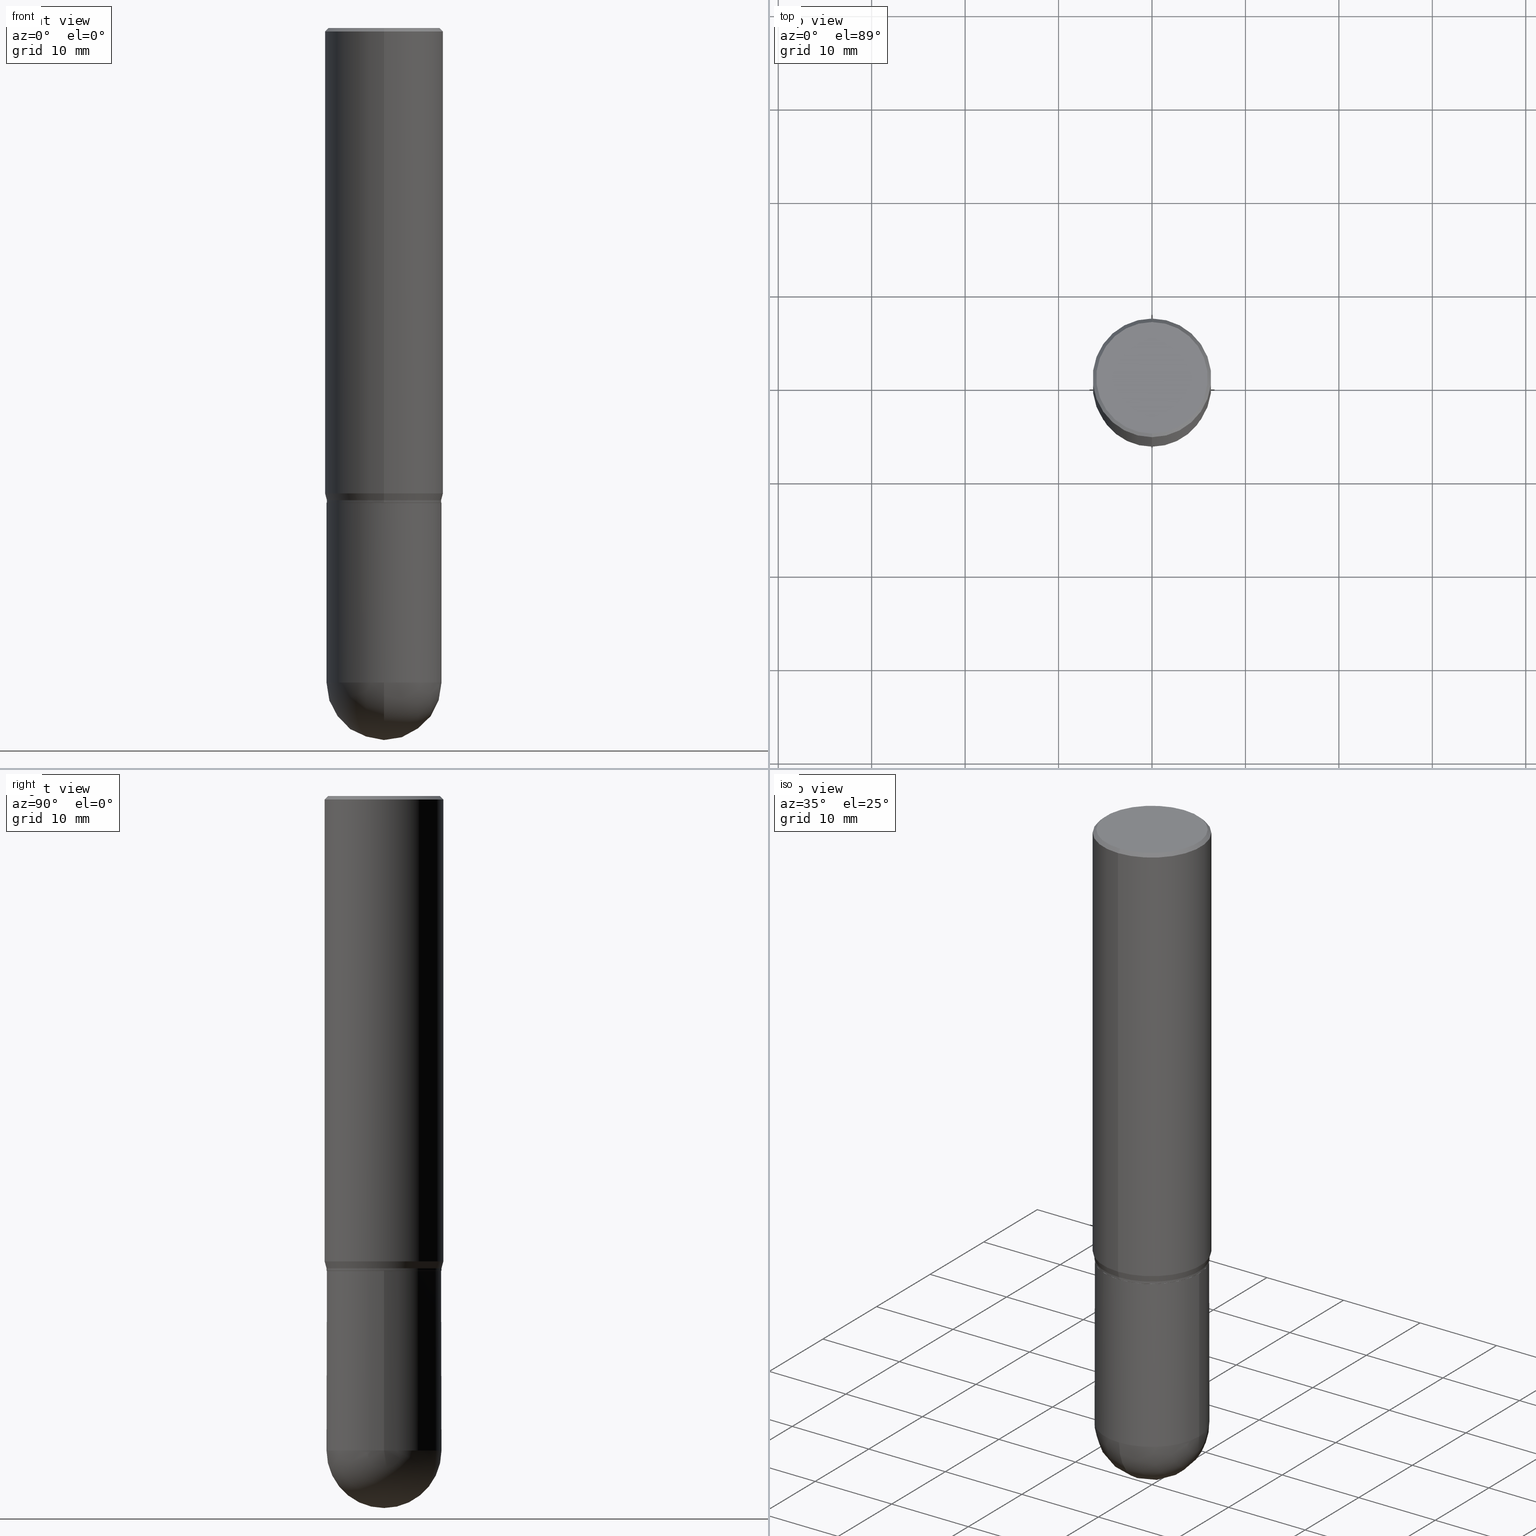
[diagram: canonical four-view strip — front | top / right | iso, engineering-drawing reading convention]
A machine part, canonical four-view strip (front | top / right | iso — engineering-drawing reading convention). The complete STEP part file that produces these views, byte-faithful:
ISO-10303-21;
HEADER;
FILE_DESCRIPTION (( 'STEP AP203' ),
    '1' );
FILE_NAME ('31160.STEP',
    '2024-03-08T15:59:25',
    ( '' ),
    ( '' ),
    'SwSTEP 2.0',
    'SolidWorks 2023',
    '' );
FILE_SCHEMA (( 'CONFIG_CONTROL_DESIGN' ));
ENDSEC;

DATA;
#1 = EDGE_CURVE ( 'NONE', #58, #331, #147, .T. ) ;
#2 = PERSON_AND_ORGANIZATION_ROLE ( 'creator' ) ;
#3 = CIRCLE ( 'NONE', #286, 0.2500000000000000000 ) ;
#4 = LOCAL_TIME ( 10, 59, 25.00000000000000000, #233 ) ;
#5 = CC_DESIGN_DATE_AND_TIME_ASSIGNMENT ( #476, #229, ( #320 ) ) ;
#6 = DATE_AND_TIME ( #270, #101 ) ;
#7 = DIRECTION ( 'NONE',  ( 2.445555638780933781E-29, -3.491356989623759642E-15, -1.000000000000000000 ) ) ;
#8 = MANIFOLD_SOLID_BREP ( 'Body-Move/Copy2[1]', #238 ) ;
#9 = DIRECTION ( 'NONE',  ( -2.445555638780933781E-29, 3.491356989623759642E-15, 1.000000000000000000 ) ) ;
#10 = FACE_OUTER_BOUND ( 'NONE', #345, .T. ) ;
#11 = EDGE_CURVE ( 'NONE', #259, #96, #506, .T. ) ;
#12 = CIRCLE ( 'NONE', #365, 0.2422000000000000264 ) ;
#13 = CARTESIAN_POINT ( 'NONE',  ( 0.2422000000000000264, -1.691273560535613991E-15, 1.181010015097775692E-29 ) ) ;
#14 = CC_DESIGN_SECURITY_CLASSIFICATION ( #320, ( #136 ) ) ;
#15 = FACE_OUTER_BOUND ( 'NONE', #144, .T. ) ;
#16 = DIRECTION ( 'NONE',  ( -6.982962677686265922E-15, -1.000000000000000000, 3.491643216902136408E-15 ) ) ;
#17 = DIRECTION ( 'NONE',  ( -6.982962677686265922E-15, -1.000000000000000000, 3.383791899666718258E-15 ) ) ;
#18 = ORIENTED_EDGE ( 'NONE', *, *, #19, .F. ) ;
#19 = EDGE_CURVE ( 'NONE', #329, #92, #245, .T. ) ;
#20 = LINE ( 'NONE', #169, #200 ) ;
#21 = DIRECTION ( 'NONE',  ( -2.445555638780933781E-29, 3.491356989623759642E-15, 1.000000000000000000 ) ) ;
#22 = AXIS2_PLACEMENT_3D ( 'NONE', #381, #26, #341 ) ;
#23 = CARTESIAN_POINT ( 'NONE',  ( 4.891111277561868122E-29, -6.982713979247520861E-15, -2.000000000000000444 ) ) ;
#24 = LINE ( 'NONE', #217, #267 ) ;
#25 = ORIENTED_EDGE ( 'NONE', *, *, #123, .F. ) ;
#26 = DIRECTION ( 'NONE',  ( -2.445555638780933781E-29, 3.491356989623759642E-15, 1.000000000000000000 ) ) ;
#27 = ADVANCED_FACE ( 'NONE', ( #352 ), #309, .F. ) ;
#28 = ORIENTED_EDGE ( 'NONE', *, *, #98, .T. ) ;
#29 = CONICAL_SURFACE ( 'NONE', #328, 0.2421999999999999431, 0.2617993877991505736 ) ;
#30 = FACE_OUTER_BOUND ( 'NONE', #55, .T. ) ;
#31 = ORIENTED_EDGE ( 'NONE', *, *, #243, .F. ) ;
#32 = DIRECTION ( 'NONE',  ( -1.000000000000000000, 6.982962677686265922E-15, -4.883557194083112340E-29 ) ) ;
#33 = ORIENTED_EDGE ( 'NONE', *, *, #209, .T. ) ;
#34 = DIRECTION ( 'NONE',  ( -2.445555638780933781E-29, 3.491356989623759642E-15, 1.000000000000000000 ) ) ;
#35 = ADVANCED_FACE ( 'NONE', ( #399 ), #29, .T. ) ;
#36 = CARTESIAN_POINT ( 'NONE',  ( 4.890937612370273754E-29, -6.982962677686291954E-15, -2.000000000000000444 ) ) ;
#37 = SHAPE_DEFINITION_REPRESENTATION ( #193, #241 ) ;
#38 = VECTOR ( 'NONE', #450, 39.37007874015748854 ) ;
#39 = ORIENTED_EDGE ( 'NONE', *, *, #413, .F. ) ;
#40 = VECTOR ( 'NONE', #432, 39.37007874015748143 ) ;
#41 = CARTESIAN_POINT ( 'NONE',  ( 6.744113873697370654E-29, -9.628807236261628470E-15, -2.757800000000000473 ) ) ;
#42 = APPROVAL_PERSON_ORGANIZATION ( #344, #456, #237 ) ;
#43 = APPROVAL_DATE_TIME ( #120, #417 ) ;
#44 = DIRECTION ( 'NONE',  ( -6.982962677686265922E-15, -1.000000000000000000, 3.383791899666718258E-15 ) ) ;
#45 = MECHANICAL_CONTEXT ( 'NONE', #196, 'mechanical' ) ;
#46 = CALENDAR_DATE ( 2024, 8, 3 ) ;
#47 = DIRECTION ( 'NONE',  ( -2.445555638780933781E-29, 3.491356989623759642E-15, 1.000000000000000000 ) ) ;
#48 = CLOSED_SHELL ( 'NONE', ( #129, #475, #319, #140, #374, #35, #353, #303, #89, #452, #443, #340 ) ) ;
#49 = AXIS2_PLACEMENT_3D ( 'NONE', #175, #213, #335 ) ;
#50 = CARTESIAN_POINT ( 'NONE',  ( 3.668333458171462749E-31, -5.237035484435728604E-17, -0.01500000000000025445 ) ) ;
#51 = DIRECTION ( 'NONE',  ( -6.982962677686265922E-15, -1.000000000000000000, 3.383791899666718258E-15 ) ) ;
#52 = CC_DESIGN_PERSON_AND_ORGANIZATION_ASSIGNMENT ( #442, #81, ( #362 ) ) ;
#53 = DIRECTION ( 'NONE',  ( -2.445555638780933781E-29, 3.491356989623759642E-15, 1.000000000000000000 ) ) ;
#54 = DIRECTION ( 'NONE',  ( -6.982962677686265922E-15, -1.000000000000000000, 3.278217592397115862E-15 ) ) ;
#55 = EDGE_LOOP ( 'NONE', ( #449, #176, #219, #214 ) ) ;
#56 = EDGE_CURVE ( 'NONE', #154, #78, #346, .T. ) ;
#57 = CARTESIAN_POINT ( 'NONE',  ( 0.000000000000000000, 0.000000000000000000, 0.000000000000000000 ) ) ;
#58 = VERTEX_POINT ( 'NONE', #165 ) ;
#59 = LOCAL_TIME ( 10, 59, 25.00000000000000000, #312 ) ;
#60 = LINE ( 'NONE', #337, #448 ) ;
#61 = EDGE_CURVE ( 'NONE', #96, #259, #295, .T. ) ;
#62 = CARTESIAN_POINT ( 'NONE',  ( 7.326050354793448959E-29, -1.048927448926711285E-14, -3.000000000000000444 ) ) ;
#63 = ORIENTED_EDGE ( 'NONE', *, *, #177, .T. ) ;
#64 = DIRECTION ( 'NONE',  ( 1.000000000000000000, -6.982962677686265922E-15, 0.000000000000000000 ) ) ;
#65 = VERTEX_POINT ( 'NONE', #318 ) ;
#66 = CARTESIAN_POINT ( 'NONE',  ( -1.745740669421565889E-15, -0.2500000000000000555, -0.01499999999999938188 ) ) ;
#67 = DIRECTION ( 'NONE',  ( -6.982962677686265922E-15, -1.000000000000000000, 3.491356989623759247E-15 ) ) ;
#68 = LOCAL_TIME ( 10, 59, 25.00000000000000000, #275 ) ;
#69 = ORIENTED_EDGE ( 'NONE', *, *, #384, .F. ) ;
#70 = FACE_OUTER_BOUND ( 'NONE', #150, .T. ) ;
#71 = EDGE_CURVE ( 'NONE', #259, #508, #82, .T. ) ;
#72 = DATE_TIME_ROLE ( 'creation_date' ) ;
#73 = ORIENTED_EDGE ( 'NONE', *, *, #435, .F. ) ;
#74 = CARTESIAN_POINT ( 'NONE',  ( 4.889888499742477843E-29, -6.980968300752708028E-15, -1.999500000000000277 ) ) ;
#75 = PERSON_AND_ORGANIZATION ( #158, #212 ) ;
#76 = CARTESIAN_POINT ( 'NONE',  ( -0.2422000000000000264, 1.720934506010962838E-15, -1.191366078859738205E-29 ) ) ;
#77 = APPLICATION_PROTOCOL_DEFINITION ( 'international standard', 'config_control_design', 1994, #215 ) ;
#78 = VERTEX_POINT ( 'NONE', #355 ) ;
#79 = CIRCLE ( 'NONE', #22, 0.2500000000000000000 ) ;
#80 = DIRECTION ( 'NONE',  ( -2.445468806185136597E-29, 3.491481338843145583E-15, 1.000000000000000000 ) ) ;
#81 = PERSON_AND_ORGANIZATION_ROLE ( 'design_owner' ) ;
#82 = LINE ( 'NONE', #130, #132 ) ;
#83 = DIRECTION ( 'NONE',  ( -2.445555638780933781E-29, 3.491356989623759642E-15, 1.000000000000000000 ) ) ;
#84 = DIRECTION ( 'NONE',  ( 6.982962677686265922E-15, 1.000000000000000000, -3.491643216902136408E-15 ) ) ;
#85 = CARTESIAN_POINT ( 'NONE',  ( 3.668333458171462749E-31, -5.237035484435728604E-17, -0.01500000000000025445 ) ) ;
#86 = VECTOR ( 'NONE', #493, 39.37007874015748143 ) ;
#87 = APPROVAL ( #510, 'UNSPECIFIED' ) ;
#88 = CARTESIAN_POINT ( 'NONE',  ( 1.640996229256272519E-15, 0.2349999999999999867, -9.479993275612526282E-16 ) ) ;
#89 = ADVANCED_FACE ( 'NONE', ( #10 ), #445, .F. ) ;
#90 = DIRECTION ( 'NONE',  ( 1.000000000000000000, -6.982962677686266711E-15, 4.876176775795935232E-29 ) ) ;
#91 = AXIS2_PLACEMENT_3D ( 'NONE', #310, #47, #473 ) ;
#92 = VERTEX_POINT ( 'NONE', #481 ) ;
#93 = CARTESIAN_POINT ( 'NONE',  ( 6.723401746173445627E-29, -9.658468181736976725E-15, -2.757800000000000473 ) ) ;
#94 = EDGE_LOOP ( 'NONE', ( #234, #392, #460, #387 ) ) ;
#95 = CARTESIAN_POINT ( 'NONE',  ( 4.891111277561868122E-29, -6.982713979247520861E-15, -2.000000000000000444 ) ) ;
#96 = VERTEX_POINT ( 'NONE', #162 ) ;
#97 = ORIENTED_EDGE ( 'NONE', *, *, #205, .F. ) ;
#98 = EDGE_CURVE ( 'NONE', #376, #170, #492, .T. ) ;
#99 = AXIS2_PLACEMENT_3D ( 'NONE', #338, #195, #261 ) ;
#100 = CIRCLE ( 'NONE', #336, 0.2421999999999999431 ) ;
#101 = LOCAL_TIME ( 10, 59, 25.00000000000000000, #194 ) ;
#102 = DIRECTION ( 'NONE',  ( -2.445555638780933781E-29, 3.491356989623759247E-15, 1.000000000000000000 ) ) ;
#103 = ORIENTED_EDGE ( 'NONE', *, *, #404, .F. ) ;
#104 = ORIENTED_EDGE ( 'NONE', *, *, #488, .F. ) ;
#105 = UNCERTAINTY_MEASURE_WITH_UNIT (LENGTH_MEASURE( 1.000000000000000082E-05 ), #260, 'distance_accuracy_value', 'NONE');
#106 = DIRECTION ( 'NONE',  ( -2.445468806185136597E-29, 3.491481338843145583E-15, 1.000000000000000000 ) ) ;
#107 = ORIENTED_EDGE ( 'NONE', *, *, #397, .F. ) ;
#108 = DIRECTION ( 'NONE',  ( 6.982962677686265922E-15, 1.000000000000000000, -4.511722532888956363E-15 ) ) ;
#109 = EDGE_LOOP ( 'NONE', ( #486, #208, #424, #25, #333 ) ) ;
#110 = EDGE_CURVE ( 'NONE', #78, #154, #167, .T. ) ;
#111 = LINE ( 'NONE', #146, #330 ) ;
#112 = ORIENTED_EDGE ( 'NONE', *, *, #205, .T. ) ;
#113 = LINE ( 'NONE', #227, #256 ) ;
#114 = DIRECTION ( 'NONE',  ( -7.105427357601000281E-15, -1.000000000000000000, 0.000000000000000000 ) ) ;
#115 = AXIS2_PLACEMENT_3D ( 'NONE', #23, #378, #143 ) ;
#116 = CC_DESIGN_APPROVAL ( #87, ( #320 ) ) ;
#117 = DIRECTION ( 'NONE',  ( 1.000000000000000000, -6.982962677686265922E-15, 4.883557194083112340E-29 ) ) ;
#118 = DATE_AND_TIME ( #46, #68 ) ;
#119 = ORIENTED_EDGE ( 'NONE', *, *, #56, .F. ) ;
#120 = DATE_AND_TIME ( #199, #4 ) ;
#121 = EDGE_LOOP ( 'NONE', ( #308, #224, #370, #470 ) ) ;
#122 = DIRECTION ( 'NONE',  ( -6.982962677686265922E-15, -1.000000000000000000, 3.383791899666718258E-15 ) ) ;
#123 = EDGE_CURVE ( 'NONE', #329, #137, #485, .T. ) ;
#124 = SECURITY_CLASSIFICATION_LEVEL ( 'unclassified' ) ;
#125 = CIRCLE ( 'NONE', #439, 0.2500000000000000000 ) ;
#126 = CARTESIAN_POINT ( 'NONE',  ( 0.000000000000000000, 0.000000000000000000, 0.000000000000000000 ) ) ;
#127 = PERSON_AND_ORGANIZATION ( #158, #212 ) ;
#128 = PERSON_AND_ORGANIZATION ( #158, #212 ) ;
#129 = ADVANCED_FACE ( 'NONE', ( #324 ), #284, .T. ) ;
#130 = CARTESIAN_POINT ( 'NONE',  ( 1.720934506011010761E-15, 0.2421999999999930042, -1.990000000000001101 ) ) ;
#131 = PRODUCT_DEFINITION ( 'UNKNOWN', '', #136, #419 ) ;
#132 = VECTOR ( 'NONE', #361, 39.37007874015748143 ) ;
#133 = CARTESIAN_POINT ( 'NONE',  ( 0.000000000000000000, 0.000000000000000000, 0.000000000000000000 ) ) ;
#134 = AXIS2_PLACEMENT_3D ( 'NONE', #57, #423, #171 ) ;
#135 = FACE_OUTER_BOUND ( 'NONE', #109, .T. ) ;
#136 = PRODUCT_DEFINITION_FORMATION_WITH_SPECIFIED_SOURCE ( 'ANY', '', #362, .NOT_KNOWN. ) ;
#137 = VERTEX_POINT ( 'NONE', #151 ) ;
#138 = ORIENTED_EDGE ( 'NONE', *, *, #189, .F. ) ;
#139 = LINE ( 'NONE', #304, #86 ) ;
#140 = ADVANCED_FACE ( 'NONE', ( #70 ), #468, .T. ) ;
#141 = EDGE_LOOP ( 'NONE', ( #31, #495, #107, #73 ) ) ;
#142 = AXIS2_PLACEMENT_3D ( 'NONE', #281, #402, #51 ) ;
#143 = DIRECTION ( 'NONE',  ( -6.982962677686265922E-15, -1.000000000000000000, 3.390791882909718260E-15 ) ) ;
#144 = EDGE_LOOP ( 'NONE', ( #287, #294, #465, #103 ) ) ;
#145 = ADVANCED_FACE ( 'NONE', ( #135 ), #221, .T. ) ;
#146 = CARTESIAN_POINT ( 'NONE',  ( -1.691273560535613202E-15, -0.2421999999999999431, 8.456066628868743070E-16 ) ) ;
#147 = LINE ( 'NONE', #76, #211 ) ;
#148 = DIRECTION ( 'NONE',  ( 1.000000000000000000, -6.982962677686265922E-15, 0.000000000000000000 ) ) ;
#149 =( NAMED_UNIT ( * ) PLANE_ANGLE_UNIT ( ) SI_UNIT ( $, .RADIAN. ) );
#150 = EDGE_LOOP ( 'NONE', ( #426, #298, #307, #505 ) ) ;
#151 = CARTESIAN_POINT ( 'NONE',  ( 0.2422000000000000264, -8.674236238221906143E-15, -2.000000000000000444 ) ) ;
#152 = CONICAL_SURFACE ( 'NONE', #179, 0.2421999999999999431, 0.2617993877991505736 ) ;
#153 = VERTEX_POINT ( 'NONE', #446 ) ;
#154 = VERTEX_POINT ( 'NONE', #247 ) ;
#155 = ADVANCED_FACE ( 'NONE', ( #343 ), #429, .T. ) ;
#156 = APPROVAL_DATE_TIME ( #6, #456 ) ;
#157 = ORIENTED_EDGE ( 'NONE', *, *, #359, .F. ) ;
#158 = PERSON ( 'UNSPECIFIED', 'UNSPECIFIED', 'UNSPECIFIED', ('UNSPECIFIED'), ('UNSPECIFIED'), ('UNSPECIFIED') ) ;
#159 = DIRECTION ( 'NONE',  ( 2.445555638780933781E-29, -3.491356989623759642E-15, -1.000000000000000000 ) ) ;
#160 = PERSON_AND_ORGANIZATION ( #158, #212 ) ;
#161 = CONICAL_SURFACE ( 'NONE', #115, 0.2417000000000000259, 0.7853981633974824739 ) ;
#162 = CARTESIAN_POINT ( 'NONE',  ( -1.691273560535564490E-15, -0.2422000000000068820, -1.989999999999999547 ) ) ;
#163 = ADVANCED_FACE ( 'NONE', ( #496 ), #207, .T. ) ;
#164 = PERSON_AND_ORGANIZATION_ROLE ( 'design_supplier' ) ;
#165 = CARTESIAN_POINT ( 'NONE',  ( -0.2422000000000000264, -6.584950450963000136E-15, -2.757800000000000473 ) ) ;
#166 = CYLINDRICAL_SURFACE ( 'NONE', #395, 0.2421999999999999431 ) ;
#167 = CIRCLE ( 'NONE', #188, 0.2349999999999999867 ) ;
#168 = DIRECTION ( 'NONE',  ( -2.445468806185136877E-29, 3.491481338843145188E-15, 1.000000000000000000 ) ) ;
#169 = CARTESIAN_POINT ( 'NONE',  ( -1.715124499442882299E-15, -0.2500000000000000555, -0.01499999999999938188 ) ) ;
#170 = VERTEX_POINT ( 'NONE', #66 ) ;
#171 = DIRECTION ( 'NONE',  ( 1.000000000000000000, -6.982962677686266711E-15, 4.876176775795935232E-29 ) ) ;
#172 = MANIFOLD_SOLID_BREP ( 'Body-Move/Copy2[2]', #48 ) ;
#173 = CARTESIAN_POINT ( 'NONE',  ( -1.691273560535564490E-15, -0.2422000000000069375, -1.999499999999999611 ) ) ;
#174 = DIRECTION ( 'NONE',  ( -6.982962677686265922E-15, -1.000000000000000000, 3.390791882909718260E-15 ) ) ;
#175 = CARTESIAN_POINT ( 'NONE',  ( 4.891111277561868122E-29, -6.982713979247520861E-15, -2.000000000000000444 ) ) ;
#176 = ORIENTED_EDGE ( 'NONE', *, *, #488, .T. ) ;
#177 = EDGE_CURVE ( 'NONE', #65, #170, #113, .T. ) ;
#178 = AXIS2_PLACEMENT_3D ( 'NONE', #332, #409, #90 ) ;
#179 = AXIS2_PLACEMENT_3D ( 'NONE', #325, #368, #17 ) ;
#180 = FACE_OUTER_BOUND ( 'NONE', #453, .T. ) ;
#181 = ORIENTED_EDGE ( 'NONE', *, *, #283, .T. ) ;
#182 = DIRECTION ( 'NONE',  ( -2.445555638780933781E-29, 3.491356989623759247E-15, 1.000000000000000000 ) ) ;
#183 = CC_DESIGN_PERSON_AND_ORGANIZATION_ASSIGNMENT ( #75, #504, ( #320 ) ) ;
#184 = ORIENTED_EDGE ( 'NONE', *, *, #198, .T. ) ;
#185 = CARTESIAN_POINT ( 'NONE',  ( -1.720934506010895390E-15, -0.2422000000000096576, -2.757799999999999141 ) ) ;
#186 = APPROVAL_STATUS ( 'not_yet_approved' ) ;
#187 = CARTESIAN_POINT ( 'NONE',  ( 6.723401746173445627E-29, -9.658468181736976725E-15, -2.757800000000000473 ) ) ;
#188 = AXIS2_PLACEMENT_3D ( 'NONE', #363, #317, #480 ) ;
#189 = EDGE_CURVE ( 'NONE', #78, #376, #250, .T. ) ;
#190 = CIRCLE ( 'NONE', #239, 0.2417000000000000259 ) ;
#191 = ORIENTED_EDGE ( 'NONE', *, *, #359, .T. ) ;
#192 = DIRECTION ( 'NONE',  ( 1.000000000000000000, -6.982962677686265922E-15, 0.000000000000000000 ) ) ;
#193 = PRODUCT_DEFINITION_SHAPE ( 'NONE', 'NONE',  #131 ) ;
#194 = COORDINATED_UNIVERSAL_TIME_OFFSET ( 5, 0, .BEHIND. ) ;
#195 = DIRECTION ( 'NONE',  ( -2.445468806185136597E-29, 3.491481338843145583E-15, 1.000000000000000000 ) ) ;
#196 = APPLICATION_CONTEXT ( 'configuration controlled 3d designs of mechanical parts and assemblies' ) ;
#197 = APPROVAL_ROLE ( '' ) ;
#198 = EDGE_CURVE ( 'NONE', #170, #376, #3, .T. ) ;
#199 = CALENDAR_DATE ( 2024, 8, 3 ) ;
#200 = VECTOR ( 'NONE', #499, 39.37007874015748143 ) ;
#201 = AXIS2_PLACEMENT_3D ( 'NONE', #210, #32, #371 ) ;
#202 = CARTESIAN_POINT ( 'NONE',  ( -0.2422000000000000264, -6.584950450962997769E-15, -2.000000000000000444 ) ) ;
#203 = DIRECTION ( 'NONE',  ( 2.438088387897960049E-29, -3.491481338843145188E-15, -1.000000000000000000 ) ) ;
#204 = DIRECTION ( 'NONE',  ( 6.982962677686265922E-15, 1.000000000000000000, -3.491356989623759247E-15 ) ) ;
#205 = EDGE_CURVE ( 'NONE', #154, #170, #20, .T. ) ;
#206 = CARTESIAN_POINT ( 'NONE',  ( 1.720934506011010761E-15, 0.2421999999999929487, -1.999500000000001165 ) ) ;
#207 = SPHERICAL_SURFACE ( 'NONE', #482, 0.2422000000000000264 ) ;
#208 = ORIENTED_EDGE ( 'NONE', *, *, #1, .T. ) ;
#209 = EDGE_CURVE ( 'NONE', #331, #137, #266, .T. ) ;
#210 = CARTESIAN_POINT ( 'NONE',  ( 6.723401746173445627E-29, -9.658468181736976725E-15, -2.757800000000000473 ) ) ;
#211 = VECTOR ( 'NONE', #273, 39.37007874015748143 ) ;
#212 = ORGANIZATION ( 'UNSPECIFIED', 'UNSPECIFIED', '' ) ;
#213 = DIRECTION ( 'NONE',  ( -2.445555638780933781E-29, 3.491356989623759642E-15, 1.000000000000000000 ) ) ;
#214 = ORIENTED_EDGE ( 'NONE', *, *, #216, .F. ) ;
#215 = APPLICATION_CONTEXT ( 'configuration controlled 3d designs of mechanical parts and assemblies' ) ;
#216 = EDGE_CURVE ( 'NONE', #153, #385, #487, .T. ) ;
#217 = CARTESIAN_POINT ( 'NONE',  ( -1.691273560535564490E-15, -0.2422000000000068820, -1.989999999999999547 ) ) ;
#218 = DIRECTION ( 'NONE',  ( 1.000000000000000000, -6.982962677686265922E-15, 0.000000000000000000 ) ) ;
#219 = ORIENTED_EDGE ( 'NONE', *, *, #283, .F. ) ;
#220 = CC_DESIGN_PERSON_AND_ORGANIZATION_ASSIGNMENT ( #128, #2, ( #136 ) ) ;
#221 = CYLINDRICAL_SURFACE ( 'NONE', #178, 0.2422000000000000264 ) ;
#222 = EDGE_LOOP ( 'NONE', ( #377, #253, #191, #291, #301 ) ) ;
#223 = CARTESIAN_POINT ( 'NONE',  ( 4.891111277561868122E-29, -6.982713979247520861E-15, -2.000000000000000444 ) ) ;
#224 = ORIENTED_EDGE ( 'NONE', *, *, #11, .T. ) ;
#225 = CARTESIAN_POINT ( 'NONE',  ( 1.745740669421566875E-15, 0.2499999999999999167, -0.01500000000000112702 ) ) ;
#226 = VERTEX_POINT ( 'NONE', #185 ) ;
#227 = CARTESIAN_POINT ( 'NONE',  ( -1.745740669421566480E-15, -0.2500000000000000000, 8.728392474059399104E-16 ) ) ;
#228 = EDGE_CURVE ( 'NONE', #137, #331, #394, .T. ) ;
#229 = DATE_TIME_ROLE ( 'classification_date' ) ;
#230 = ORIENTED_EDGE ( 'NONE', *, *, #401, .T. ) ;
#231 = AXIS2_PLACEMENT_3D ( 'NONE', #498, #203, #242 ) ;
#232 = AXIS2_PLACEMENT_3D ( 'NONE', #85, #7, #84 ) ;
#233 = COORDINATED_UNIVERSAL_TIME_OFFSET ( 5, 0, .BEHIND. ) ;
#234 = ORIENTED_EDGE ( 'NONE', *, *, #401, .F. ) ;
#235 = DIRECTION ( 'NONE',  ( -2.445555638780933781E-29, 3.491356989623759642E-15, 1.000000000000000000 ) ) ;
#236 = CARTESIAN_POINT ( 'NONE',  ( 0.2422000000000000264, -9.997158517509574401E-15, -2.757800000000000473 ) ) ;
#237 = APPROVAL_ROLE ( '' ) ;
#238 = CLOSED_SHELL ( 'NONE', ( #145, #248, #27, #163, #155 ) ) ;
#239 = AXIS2_PLACEMENT_3D ( 'NONE', #223, #497, #174 ) ;
#240 = FACE_OUTER_BOUND ( 'NONE', #511, .T. ) ;
#241 = ADVANCED_BREP_SHAPE_REPRESENTATION ( '31160', ( #8, #172, #282 ), #494 ) ;
#242 = DIRECTION ( 'NONE',  ( -1.000000000000000000, 6.982962677686265922E-15, -4.876176775795935793E-29 ) ) ;
#243 = EDGE_CURVE ( 'NONE', #379, #92, #12, .T. ) ;
#244 = CC_DESIGN_PERSON_AND_ORGANIZATION_ASSIGNMENT ( #436, #272, ( #131 ) ) ;
#245 = CIRCLE ( 'NONE', #99, 0.2422000000000000264 ) ;
#246 = CIRCLE ( 'NONE', #483, 0.2422000000000000264 ) ;
#247 = CARTESIAN_POINT ( 'NONE',  ( -1.663670764459595899E-15, -0.2349999999999999867, 5.654080225622448847E-16 ) ) ;
#248 = ADVANCED_FACE ( 'NONE', ( #383 ), #302, .T. ) ;
#249 = EDGE_LOOP ( 'NONE', ( #255, #380, #18, #157 ) ) ;
#250 = LINE ( 'NONE', #225, #40 ) ;
#251 = ORIENTED_EDGE ( 'NONE', *, *, #326, .F. ) ;
#252 = CARTESIAN_POINT ( 'NONE',  ( 1.776356839400298585E-15, 0.2499999999999999167, -0.01500000000000112702 ) ) ;
#253 = ORIENTED_EDGE ( 'NONE', *, *, #397, .T. ) ;
#254 = AXIS2_PLACEMENT_3D ( 'NONE', #388, #262, #148 ) ;
#255 = ORIENTED_EDGE ( 'NONE', *, *, #420, .F. ) ;
#256 = VECTOR ( 'NONE', #182, 39.37007874015748143 ) ;
#257 = AXIS2_PLACEMENT_3D ( 'NONE', #95, #334, #67 ) ;
#258 = CARTESIAN_POINT ( 'NONE',  ( 1.720934506010962049E-15, 0.2421999999999999431, -8.456066628868743070E-16 ) ) ;
#259 = VERTEX_POINT ( 'NONE', #466 ) ;
#260 =( CONVERSION_BASED_UNIT ( 'INCH', #293 ) LENGTH_UNIT ( ) NAMED_UNIT ( #472 ) );
#261 = DIRECTION ( 'NONE',  ( 1.000000000000000000, -6.982962677686265922E-15, 0.000000000000000000 ) ) ;
#262 = DIRECTION ( 'NONE',  ( -2.445468806185136597E-29, 3.491481338843145583E-15, 1.000000000000000000 ) ) ;
#263 = ORIENTED_EDGE ( 'NONE', *, *, #189, .T. ) ;
#264 = ORIENTED_EDGE ( 'NONE', *, *, #367, .T. ) ;
#265 = CARTESIAN_POINT ( 'NONE',  ( 3.668333458171462749E-31, -5.237035484435728604E-17, -0.01500000000000025445 ) ) ;
#266 = CIRCLE ( 'NONE', #254, 0.2422000000000000264 ) ;
#267 = VECTOR ( 'NONE', #300, 39.37007874015748854 ) ;
#268 =( NAMED_UNIT ( * ) SI_UNIT ( $, .STERADIAN. ) SOLID_ANGLE_UNIT ( ) );
#269 = CARTESIAN_POINT ( 'NONE',  ( 1.719158149171610903E-15, 0.2416999999999930593, -2.000000000000000888 ) ) ;
#270 = CALENDAR_DATE ( 2024, 8, 3 ) ;
#271 = VERTEX_POINT ( 'NONE', #269 ) ;
#272 = PERSON_AND_ORGANIZATION_ROLE ( 'creator' ) ;
#273 = DIRECTION ( 'NONE',  ( -2.445468806185136877E-29, 3.491481338843145188E-15, 1.000000000000000000 ) ) ;
#274 = APPROVAL_PERSON_ORGANIZATION ( #160, #417, #197 ) ;
#275 = COORDINATED_UNIVERSAL_TIME_OFFSET ( 5, 0, .BEHIND. ) ;
#276 = CYLINDRICAL_SURFACE ( 'NONE', #416, 0.2500000000000000000 ) ;
#277 = COORDINATED_UNIVERSAL_TIME_OFFSET ( 5, 0, .BEHIND. ) ;
#278 = CARTESIAN_POINT ( 'NONE',  ( 4.866655721174059188E-29, -6.947800409351283919E-15, -1.990000000000000435 ) ) ;
#279 = APPROVAL_DATE_TIME ( #478, #87 ) ;
#280 = AXIS2_PLACEMENT_3D ( 'NONE', #437, #398, #44 ) ;
#281 = CARTESIAN_POINT ( 'NONE',  ( 4.866655721174059188E-29, -6.947800409351283919E-15, -1.990000000000000435 ) ) ;
#282 = AXIS2_PLACEMENT_3D ( 'NONE', #357, #471, #441 ) ;
#283 = EDGE_CURVE ( 'NONE', #385, #369, #100, .T. ) ;
#284 = CYLINDRICAL_SURFACE ( 'NONE', #428, 0.2421999999999999431 ) ;
#285 = DIRECTION ( 'NONE',  ( -6.982962677686265922E-15, -1.000000000000000000, 3.491356989623759642E-15 ) ) ;
#286 = AXIS2_PLACEMENT_3D ( 'NONE', #265, #327, #339 ) ;
#287 = ORIENTED_EDGE ( 'NONE', *, *, #61, .T. ) ;
#288 = CC_DESIGN_APPROVAL ( #417, ( #131 ) ) ;
#289 = ORIENTED_EDGE ( 'NONE', *, *, #61, .F. ) ;
#290 = CARTESIAN_POINT ( 'NONE',  ( -1.687782079196721483E-15, -0.2417000000000069926, -1.999999999999999334 ) ) ;
#291 = ORIENTED_EDGE ( 'NONE', *, *, #123, .T. ) ;
#292 = DIRECTION ( 'NONE',  ( -2.445555638780933781E-29, 3.491356989623759247E-15, 1.000000000000000000 ) ) ;
#293 = LENGTH_MEASURE_WITH_UNIT ( LENGTH_MEASURE( 0.02539999999999999897 ), #454 );
#294 = ORIENTED_EDGE ( 'NONE', *, *, #71, .T. ) ;
#295 = CIRCLE ( 'NONE', #142, 0.2421999999999999431 ) ;
#296 = CIRCLE ( 'NONE', #474, 0.2422000000000000264 ) ;
#297 = CARTESIAN_POINT ( 'NONE',  ( 1.776356839400298191E-15, 0.2499999999999931721, -1.960890003700963780 ) ) ;
#298 = ORIENTED_EDGE ( 'NONE', *, *, #484, .T. ) ;
#299 = DIRECTION ( 'NONE',  ( -1.000000000000000000, 6.982962677686265922E-15, -4.883557194083112340E-29 ) ) ;
#300 = DIRECTION ( 'NONE',  ( -1.807323732225332111E-15, -0.2588190451025184635, 0.9659258262890689783 ) ) ;
#301 = ORIENTED_EDGE ( 'NONE', *, *, #209, .F. ) ;
#302 = SPHERICAL_SURFACE ( 'NONE', #201, 0.2422000000000000264 ) ;
#303 = ADVANCED_FACE ( 'NONE', ( #512 ), #386, .T. ) ;
#304 = CARTESIAN_POINT ( 'NONE',  ( 1.776356839400250267E-15, 0.2500000000000000000, -8.728392474059399104E-16 ) ) ;
#305 = DIRECTION ( 'NONE',  ( 1.000000000000000000, -6.982962677686265922E-15, 0.000000000000000000 ) ) ;
#306 = CONICAL_SURFACE ( 'NONE', #49, 0.2417000000000000259, 0.7853981633974824739 ) ;
#307 = ORIENTED_EDGE ( 'NONE', *, *, #198, .F. ) ;
#308 = ORIENTED_EDGE ( 'NONE', *, *, #71, .F. ) ;
#309 = PLANE ( 'NONE',  #231 ) ;
#310 = CARTESIAN_POINT ( 'NONE',  ( 4.891111277561868122E-29, -6.982713979247520861E-15, -2.000000000000000444 ) ) ;
#311 = AXIS2_PLACEMENT_3D ( 'NONE', #400, #159, #509 ) ;
#312 = COORDINATED_UNIVERSAL_TIME_OFFSET ( 5, 0, .BEHIND. ) ;
#313 = FACE_OUTER_BOUND ( 'NONE', #489, .T. ) ;
#314 = CALENDAR_DATE ( 2024, 8, 3 ) ;
#315 = DIRECTION ( 'NONE',  ( -6.982962677686265922E-15, -1.000000000000000000, 3.383791899666718258E-15 ) ) ;
#316 = DIRECTION ( 'NONE',  ( -2.445555638780933781E-29, 3.491356989623759642E-15, 1.000000000000000000 ) ) ;
#317 = DIRECTION ( 'NONE',  ( -2.445555638780933781E-29, 3.491356989623759642E-15, 1.000000000000000000 ) ) ;
#318 = CARTESIAN_POINT ( 'NONE',  ( -1.745740669421518360E-15, -0.2500000000000068279, -1.960890003700962225 ) ) ;
#319 = ADVANCED_FACE ( 'NONE', ( #313 ), #469, .T. ) ;
#320 = SECURITY_CLASSIFICATION ( '', '', #124 ) ;
#321 = DIRECTION ( 'NONE',  ( -6.982962677686266711E-15, -1.000000000000000000, 3.491356989623759642E-15 ) ) ;
#322 = CC_DESIGN_APPROVAL ( #456, ( #136 ) ) ;
#323 = PRODUCT_RELATED_PRODUCT_CATEGORY ( 'detail', '', ( #362 ) ) ;
#324 = FACE_OUTER_BOUND ( 'NONE', #410, .T. ) ;
#325 = CARTESIAN_POINT ( 'NONE',  ( 4.866655721174059188E-29, -6.947800409351283919E-15, -1.990000000000000435 ) ) ;
#326 = EDGE_CURVE ( 'NONE', #153, #271, #347, .T. ) ;
#327 = DIRECTION ( 'NONE',  ( -2.445555638780933781E-29, 3.491356989623759642E-15, 1.000000000000000000 ) ) ;
#328 = AXIS2_PLACEMENT_3D ( 'NONE', #278, #9, #315 ) ;
#329 = VERTEX_POINT ( 'NONE', #236 ) ;
#330 = VECTOR ( 'NONE', #292, 39.37007874015748143 ) ;
#331 = VERTEX_POINT ( 'NONE', #202 ) ;
#332 = CARTESIAN_POINT ( 'NONE',  ( 0.000000000000000000, 0.000000000000000000, 0.000000000000000000 ) ) ;
#333 = ORIENTED_EDGE ( 'NONE', *, *, #19, .T. ) ;
#334 = DIRECTION ( 'NONE',  ( -2.445555638780933781E-29, 3.491356989623759247E-15, 1.000000000000000000 ) ) ;
#335 = DIRECTION ( 'NONE',  ( -6.982962677686265922E-15, -1.000000000000000000, 3.390791882909718260E-15 ) ) ;
#336 = AXIS2_PLACEMENT_3D ( 'NONE', #74, #390, #122 ) ;
#337 = CARTESIAN_POINT ( 'NONE',  ( 1.717381792332211046E-15, 0.2416999999999930593, -2.000000000000000888 ) ) ;
#338 = CARTESIAN_POINT ( 'NONE',  ( 6.744113873697370654E-29, -9.628807236261628470E-15, -2.757800000000000473 ) ) ;
#339 = DIRECTION ( 'NONE',  ( -6.982962677686265922E-15, -1.000000000000000000, 3.491643216902136408E-15 ) ) ;
#340 = ADVANCED_FACE ( 'NONE', ( #358 ), #166, .T. ) ;
#341 = DIRECTION ( 'NONE',  ( -6.982962677686265922E-15, -1.000000000000000000, 3.278217592397115862E-15 ) ) ;
#342 = ORIENTED_EDGE ( 'NONE', *, *, #503, .F. ) ;
#343 = FACE_OUTER_BOUND ( 'NONE', #222, .T. ) ;
#344 = PERSON_AND_ORGANIZATION ( #158, #212 ) ;
#345 = EDGE_LOOP ( 'NONE', ( #412, #501 ) ) ;
#346 = CIRCLE ( 'NONE', #407, 0.2349999999999999867 ) ;
#347 = CIRCLE ( 'NONE', #91, 0.2417000000000000259 ) ;
#348 = CALENDAR_DATE ( 2024, 8, 3 ) ;
#349 = EDGE_LOOP ( 'NONE', ( #422, #33 ) ) ;
#350 = CARTESIAN_POINT ( 'NONE',  ( 4.795465605580055737E-29, -6.846167020304717561E-15, -1.960890003700963113 ) ) ;
#351 = PERSON_AND_ORGANIZATION ( #158, #212 ) ;
#352 = FACE_OUTER_BOUND ( 'NONE', #349, .T. ) ;
#353 = ADVANCED_FACE ( 'NONE', ( #240 ), #276, .T. ) ;
#354 = APPROVAL_STATUS ( 'not_yet_approved' ) ;
#355 = CARTESIAN_POINT ( 'NONE',  ( 1.693368449338919598E-15, 0.2349999999999999867, -1.075529762560922139E-15 ) ) ;
#356 = AXIS2_PLACEMENT_3D ( 'NONE', #375, #372, #431 ) ;
#357 = CARTESIAN_POINT ( 'NONE',  ( 0.000000000000000000, 0.000000000000000000, 0.000000000000000000 ) ) ;
#358 = FACE_OUTER_BOUND ( 'NONE', #94, .T. ) ;
#359 = EDGE_CURVE ( 'NONE', #226, #329, #507, .T. ) ;
#360 = CC_DESIGN_PERSON_AND_ORGANIZATION_ASSIGNMENT ( #127, #164, ( #136 ) ) ;
#361 = DIRECTION ( 'NONE',  ( 1.839019923739602287E-15, 0.2588190451025252359, 0.9659258262890670910 ) ) ;
#362 = PRODUCT ( '31160', '31160', '', ( #45 ) ) ;
#363 = CARTESIAN_POINT ( 'NONE',  ( 6.237655488592530881E-45, -8.905085512517078143E-31, -2.550608699993385778E-16 ) ) ;
#364 = AXIS2_PLACEMENT_3D ( 'NONE', #133, #21, #285 ) ;
#365 = AXIS2_PLACEMENT_3D ( 'NONE', #93, #117, #411 ) ;
#366 = DIRECTION ( 'NONE',  ( -2.445555638780933781E-29, 3.491356989623759642E-15, 1.000000000000000000 ) ) ;
#367 = EDGE_CURVE ( 'NONE', #508, #65, #125, .T. ) ;
#368 = DIRECTION ( 'NONE',  ( -2.445555638780933781E-29, 3.491356989623759642E-15, 1.000000000000000000 ) ) ;
#369 = VERTEX_POINT ( 'NONE', #206 ) ;
#370 = ORIENTED_EDGE ( 'NONE', *, *, #404, .T. ) ;
#371 = DIRECTION ( 'NONE',  ( 6.982962677686265922E-15, 1.000000000000000000, -4.511722532888956363E-15 ) ) ;
#372 = DIRECTION ( 'NONE',  ( -2.445555638780933781E-29, 3.491356989623759642E-15, 1.000000000000000000 ) ) ;
#373 = CIRCLE ( 'NONE', #356, 0.2421999999999999431 ) ;
#374 = ADVANCED_FACE ( 'NONE', ( #15 ), #152, .T. ) ;
#375 = CARTESIAN_POINT ( 'NONE',  ( 4.889888499742477843E-29, -6.980968300752708028E-15, -1.999500000000000277 ) ) ;
#376 = VERTEX_POINT ( 'NONE', #252 ) ;
#377 = ORIENTED_EDGE ( 'NONE', *, *, #1, .F. ) ;
#378 = DIRECTION ( 'NONE',  ( -2.445555638780933781E-29, 3.491356989623759642E-15, 1.000000000000000000 ) ) ;
#379 = VERTEX_POINT ( 'NONE', #62 ) ;
#380 = ORIENTED_EDGE ( 'NONE', *, *, #243, .T. ) ;
#381 = CARTESIAN_POINT ( 'NONE',  ( 4.795465605580055737E-29, -6.846167020304717561E-15, -1.960890003700963113 ) ) ;
#382 = ORIENTED_EDGE ( 'NONE', *, *, #484, .F. ) ;
#383 = FACE_OUTER_BOUND ( 'NONE', #141, .T. ) ;
#384 = EDGE_CURVE ( 'NONE', #369, #385, #373, .T. ) ;
#385 = VERTEX_POINT ( 'NONE', #173 ) ;
#386 = CONICAL_SURFACE ( 'NONE', #232, 0.2500000000000000000, 0.7853981633974487231 ) ;
#387 = ORIENTED_EDGE ( 'NONE', *, *, #11, .F. ) ;
#388 = CARTESIAN_POINT ( 'NONE',  ( 4.890937612370273754E-29, -6.982962677686291954E-15, -2.000000000000000444 ) ) ;
#389 = ORIENTED_EDGE ( 'NONE', *, *, #98, .F. ) ;
#390 = DIRECTION ( 'NONE',  ( -2.445555638780933781E-29, 3.491356989623759642E-15, 1.000000000000000000 ) ) ;
#391 = APPROVAL_ROLE ( '' ) ;
#392 = ORIENTED_EDGE ( 'NONE', *, *, #384, .T. ) ;
#393 = DIRECTION ( 'NONE',  ( -6.982962677686265922E-15, -1.000000000000000000, 3.491356989623759642E-15 ) ) ;
#394 = CIRCLE ( 'NONE', #457, 0.2422000000000000264 ) ;
#395 = AXIS2_PLACEMENT_3D ( 'NONE', #126, #316, #479 ) ;
#396 = APPROVAL_PERSON_ORGANIZATION ( #351, #87, #391 ) ;
#397 = EDGE_CURVE ( 'NONE', #58, #226, #459, .T. ) ;
#398 = DIRECTION ( 'NONE',  ( -2.445555638780933781E-29, 3.491356989623759642E-15, 1.000000000000000000 ) ) ;
#399 = FACE_OUTER_BOUND ( 'NONE', #121, .T. ) ;
#400 = CARTESIAN_POINT ( 'NONE',  ( 3.668333458171462749E-31, -5.237035484435728604E-17, -0.01500000000000025445 ) ) ;
#401 = EDGE_CURVE ( 'NONE', #369, #259, #458, .T. ) ;
#402 = DIRECTION ( 'NONE',  ( -2.445555638780933781E-29, 3.491356989623759642E-15, 1.000000000000000000 ) ) ;
#403 = CARTESIAN_POINT ( 'NONE',  ( 0.000000000000000000, 0.000000000000000000, 0.000000000000000000 ) ) ;
#404 = EDGE_CURVE ( 'NONE', #96, #65, #24, .T. ) ;
#405 = DIRECTION ( 'NONE',  ( 2.445555638780933781E-29, -3.491356989623759247E-15, -1.000000000000000000 ) ) ;
#406 = CARTESIAN_POINT ( 'NONE',  ( 0.000000000000000000, 0.000000000000000000, 0.000000000000000000 ) ) ;
#407 = AXIS2_PLACEMENT_3D ( 'NONE', #477, #366, #321 ) ;
#408 = AXIS2_PLACEMENT_3D ( 'NONE', #41, #80, #192 ) ;
#409 = DIRECTION ( 'NONE',  ( -2.445468806185136597E-29, 3.491481338843145583E-15, 1.000000000000000000 ) ) ;
#410 = EDGE_LOOP ( 'NONE', ( #181, #230, #289, #342 ) ) ;
#411 = DIRECTION ( 'NONE',  ( 6.982962677686265922E-15, 1.000000000000000000, 0.000000000000000000 ) ) ;
#412 = ORIENTED_EDGE ( 'NONE', *, *, #110, .T. ) ;
#413 = EDGE_CURVE ( 'NONE', #271, #153, #190, .T. ) ;
#414 = DIRECTION ( 'NONE',  ( -1.000000000000000000, 7.105427357601001070E-15, -4.926315508542082329E-29 ) ) ;
#415 = AXIS2_PLACEMENT_3D ( 'NONE', #88, #405, #204 ) ;
#416 = AXIS2_PLACEMENT_3D ( 'NONE', #403, #83, #393 ) ;
#417 = APPROVAL ( #186, 'UNSPECIFIED' ) ;
#418 = DIRECTION ( 'NONE',  ( -2.445468806185136597E-29, 3.491481338843145583E-15, 1.000000000000000000 ) ) ;
#419 = DESIGN_CONTEXT ( 'detailed design', #215, 'design' ) ;
#420 = EDGE_CURVE ( 'NONE', #379, #226, #296, .T. ) ;
#421 = DIRECTION ( 'NONE',  ( 5.024295867788231995E-15, 0.7071067811865739960, 0.7071067811865208164 ) ) ;
#422 = ORIENTED_EDGE ( 'NONE', *, *, #228, .T. ) ;
#423 = DIRECTION ( 'NONE',  ( -2.445468806185136597E-29, 3.491481338843145583E-15, 1.000000000000000000 ) ) ;
#424 = ORIENTED_EDGE ( 'NONE', *, *, #228, .F. ) ;
#425 = CARTESIAN_POINT ( 'NONE',  ( 6.723401746173445627E-29, -9.658468181736976725E-15, -2.757800000000000473 ) ) ;
#426 = ORIENTED_EDGE ( 'NONE', *, *, #461, .T. ) ;
#427 = CC_DESIGN_DATE_AND_TIME_ASSIGNMENT ( #118, #72, ( #131 ) ) ;
#428 = AXIS2_PLACEMENT_3D ( 'NONE', #406, #34, #463 ) ;
#429 = CYLINDRICAL_SURFACE ( 'NONE', #134, 0.2422000000000000264 ) ;
#430 = VECTOR ( 'NONE', #102, 39.37007874015748143 ) ;
#431 = DIRECTION ( 'NONE',  ( -6.982962677686265922E-15, -1.000000000000000000, 3.383791899666718258E-15 ) ) ;
#432 = DIRECTION ( 'NONE',  ( 4.937700262164549620E-15, 0.7071067811865453523, -0.7071067811865496822 ) ) ;
#433 = APPLICATION_PROTOCOL_DEFINITION ( 'international standard', 'config_control_design', 1994, #196 ) ;
#434 = ORIENTED_EDGE ( 'NONE', *, *, #216, .T. ) ;
#435 = EDGE_CURVE ( 'NONE', #92, #58, #246, .T. ) ;
#436 = PERSON_AND_ORGANIZATION ( #158, #212 ) ;
#437 = CARTESIAN_POINT ( 'NONE',  ( 4.866655721174059188E-29, -6.947800409351283919E-15, -1.990000000000000435 ) ) ;
#438 = AXIS2_PLACEMENT_3D ( 'NONE', #50, #53, #16 ) ;
#439 = AXIS2_PLACEMENT_3D ( 'NONE', #350, #235, #54 ) ;
#440 = LOCAL_TIME ( 10, 59, 25.00000000000000000, #277 ) ;
#441 = DIRECTION ( 'NONE',  ( 1.000000000000000000, 0.000000000000000000, 0.000000000000000000 ) ) ;
#442 = PERSON_AND_ORGANIZATION ( #158, #212 ) ;
#443 = ADVANCED_FACE ( 'NONE', ( #462 ), #161, .T. ) ;
#444 = AXIS2_PLACEMENT_3D ( 'NONE', #500, #106, #64 ) ;
#445 = PLANE ( 'NONE',  #415 ) ;
#446 = CARTESIAN_POINT ( 'NONE',  ( -1.687782079196721483E-15, -0.2417000000000069926, -1.999999999999999334 ) ) ;
#447 = VECTOR ( 'NONE', #168, 39.37007874015748143 ) ;
#448 = VECTOR ( 'NONE', #421, 39.37007874015748854 ) ;
#449 = ORIENTED_EDGE ( 'NONE', *, *, #326, .T. ) ;
#450 = DIRECTION ( 'NONE',  ( -4.937700262164715281E-15, -0.7071067811865691111, 0.7071067811865257013 ) ) ;
#451 = EDGE_LOOP ( 'NONE', ( #97, #455, #263, #28 ) ) ;
#452 = ADVANCED_FACE ( 'NONE', ( #180 ), #490, .F. ) ;
#453 = EDGE_LOOP ( 'NONE', ( #251, #39 ) ) ;
#454 =( LENGTH_UNIT ( ) NAMED_UNIT ( * ) SI_UNIT ( $, .METRE. ) );
#455 = ORIENTED_EDGE ( 'NONE', *, *, #110, .F. ) ;
#456 = APPROVAL ( #354, 'UNSPECIFIED' ) ;
#457 = AXIS2_PLACEMENT_3D ( 'NONE', #36, #502, #305 ) ;
#458 = LINE ( 'NONE', #258, #430 ) ;
#459 = CIRCLE ( 'NONE', #444, 0.2422000000000000264 ) ;
#460 = ORIENTED_EDGE ( 'NONE', *, *, #503, .T. ) ;
#461 = EDGE_CURVE ( 'NONE', #65, #508, #79, .T. ) ;
#462 = FACE_OUTER_BOUND ( 'NONE', #467, .T. ) ;
#463 = DIRECTION ( 'NONE',  ( -6.982962677686265922E-15, -1.000000000000000000, 3.491356989623759247E-15 ) ) ;
#464 = CARTESIAN_POINT ( 'NONE',  ( 6.744113873697370654E-29, -9.628807236261628470E-15, -2.757800000000000473 ) ) ;
#465 = ORIENTED_EDGE ( 'NONE', *, *, #461, .F. ) ;
#466 = CARTESIAN_POINT ( 'NONE',  ( 1.748645672705654574E-15, 0.2421999999999930042, -1.990000000000001101 ) ) ;
#467 = EDGE_LOOP ( 'NONE', ( #104, #491, #434, #69 ) ) ;
#468 = CYLINDRICAL_SURFACE ( 'NONE', #364, 0.2500000000000000000 ) ;
#469 = CONICAL_SURFACE ( 'NONE', #311, 0.2500000000000000000, 0.7853981633974487231 ) ;
#470 = ORIENTED_EDGE ( 'NONE', *, *, #367, .F. ) ;
#471 = DIRECTION ( 'NONE',  ( 0.000000000000000000, 0.000000000000000000, 1.000000000000000000 ) ) ;
#472 = DIMENSIONAL_EXPONENTS ( 1.000000000000000000, 0.000000000000000000, 0.000000000000000000, 0.000000000000000000, 0.000000000000000000, 0.000000000000000000, 0.000000000000000000 ) ;
#473 = DIRECTION ( 'NONE',  ( -6.982962677686265922E-15, -1.000000000000000000, 3.390791882909718260E-15 ) ) ;
#474 = AXIS2_PLACEMENT_3D ( 'NONE', #425, #414, #114 ) ;
#475 = ADVANCED_FACE ( 'NONE', ( #30 ), #306, .T. ) ;
#476 = DATE_AND_TIME ( #348, #59 ) ;
#477 = CARTESIAN_POINT ( 'NONE',  ( 6.237655488592530881E-45, -8.905085512517078143E-31, -2.550608699993385778E-16 ) ) ;
#478 = DATE_AND_TIME ( #314, #440 ) ;
#479 = DIRECTION ( 'NONE',  ( -6.982962677686265922E-15, -1.000000000000000000, 3.491356989623759247E-15 ) ) ;
#480 = DIRECTION ( 'NONE',  ( -6.982962677686266711E-15, -1.000000000000000000, 3.491356989623759642E-15 ) ) ;
#481 = CARTESIAN_POINT ( 'NONE',  ( 1.691273560535681242E-15, 0.2421999999999903952, -2.757800000000001361 ) ) ;
#482 = AXIS2_PLACEMENT_3D ( 'NONE', #187, #299, #108 ) ;
#483 = AXIS2_PLACEMENT_3D ( 'NONE', #464, #418, #218 ) ;
#484 = EDGE_CURVE ( 'NONE', #508, #376, #139, .T. ) ;
#485 = LINE ( 'NONE', #13, #447 ) ;
#486 = ORIENTED_EDGE ( 'NONE', *, *, #435, .T. ) ;
#487 = LINE ( 'NONE', #290, #38 ) ;
#488 = EDGE_CURVE ( 'NONE', #271, #369, #60, .T. ) ;
#489 = EDGE_LOOP ( 'NONE', ( #119, #112, #184, #138 ) ) ;
#490 = PLANE ( 'NONE',  #257 ) ;
#491 = ORIENTED_EDGE ( 'NONE', *, *, #413, .T. ) ;
#492 = CIRCLE ( 'NONE', #438, 0.2500000000000000000 ) ;
#493 = DIRECTION ( 'NONE',  ( -2.445555638780933781E-29, 3.491356989623759247E-15, 1.000000000000000000 ) ) ;
#494 =( GEOMETRIC_REPRESENTATION_CONTEXT ( 3 ) GLOBAL_UNCERTAINTY_ASSIGNED_CONTEXT ( ( #105 ) ) GLOBAL_UNIT_ASSIGNED_CONTEXT ( ( #260, #149, #268 ) ) REPRESENTATION_CONTEXT ( 'NONE', 'WORKASPACE' ) );
#495 = ORIENTED_EDGE ( 'NONE', *, *, #420, .T. ) ;
#496 = FACE_OUTER_BOUND ( 'NONE', #249, .T. ) ;
#497 = DIRECTION ( 'NONE',  ( -2.445555638780933781E-29, 3.491356989623759642E-15, 1.000000000000000000 ) ) ;
#498 = CARTESIAN_POINT ( 'NONE',  ( 1.691273560535662704E-15, 0.2421999999999930597, -2.000000000000000888 ) ) ;
#499 = DIRECTION ( 'NONE',  ( -4.851104656540965853E-15, -0.7071067811865502373, -0.7071067811865447972 ) ) ;
#500 = CARTESIAN_POINT ( 'NONE',  ( 6.744113873697370654E-29, -9.628807236261628470E-15, -2.757800000000000473 ) ) ;
#501 = ORIENTED_EDGE ( 'NONE', *, *, #56, .T. ) ;
#502 = DIRECTION ( 'NONE',  ( -2.445468806185136597E-29, 3.491481338843145583E-15, 1.000000000000000000 ) ) ;
#503 = EDGE_CURVE ( 'NONE', #385, #96, #111, .T. ) ;
#504 = PERSON_AND_ORGANIZATION_ROLE ( 'classification_officer' ) ;
#505 = ORIENTED_EDGE ( 'NONE', *, *, #177, .F. ) ;
#506 = CIRCLE ( 'NONE', #280, 0.2421999999999999431 ) ;
#507 = CIRCLE ( 'NONE', #408, 0.2422000000000000264 ) ;
#508 = VERTEX_POINT ( 'NONE', #297 ) ;
#509 = DIRECTION ( 'NONE',  ( 6.982962677686265922E-15, 1.000000000000000000, -3.491643216902136408E-15 ) ) ;
#510 = APPROVAL_STATUS ( 'not_yet_approved' ) ;
#511 = EDGE_LOOP ( 'NONE', ( #382, #264, #63, #389 ) ) ;
#512 = FACE_OUTER_BOUND ( 'NONE', #451, .T. ) ;
ENDSEC;
END-ISO-10303-21;
